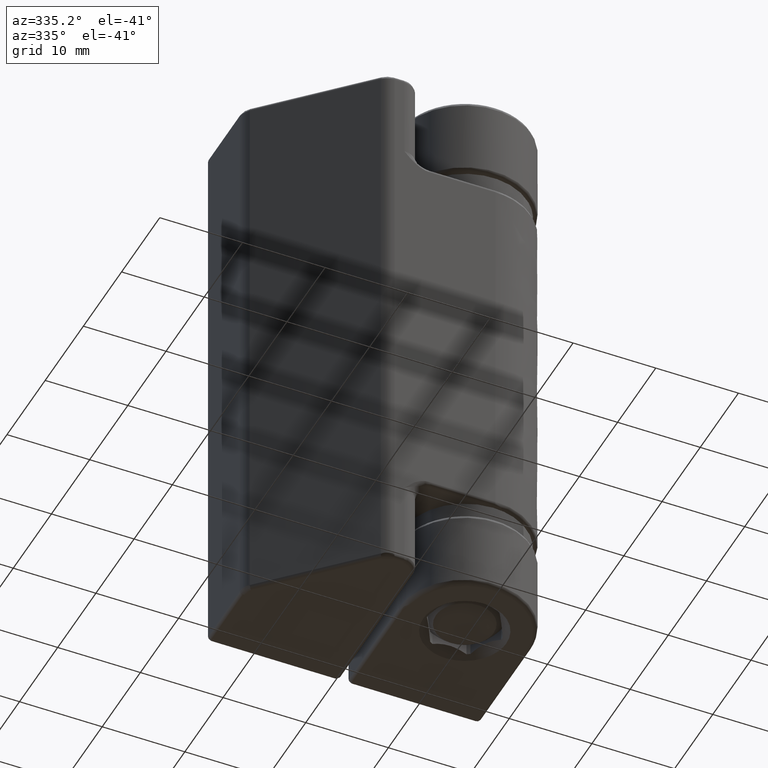
[diagram: clean part render]
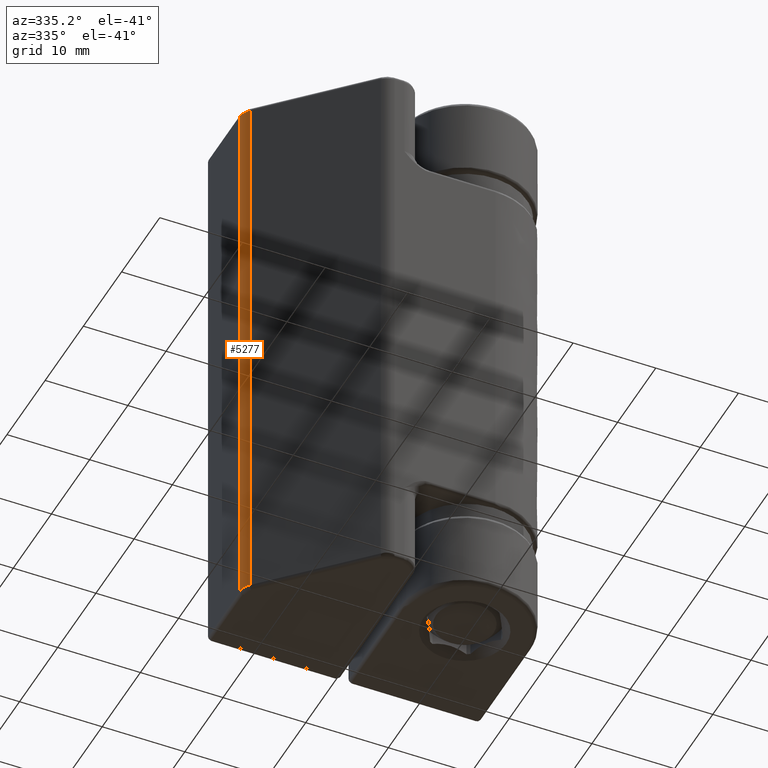
[diagram: same view with one face highlighted and labeled with its STEP entity id]
A machine part, auxiliary view. The second image highlights one B-rep face of the part: STEP entity #5277.
In plain terms, the highlighted face is a freeform B-spline surface patch.
Its self-contained STEP definition (entity closure, byte-faithful):
#5217=CARTESIAN_POINT('',(-24.999314649951110,4.880781021358529,71.225000000000009));
#5218=CARTESIAN_POINT('',(-24.999314649951110,4.880781021358529,-1.268125000000178));
#5219=CARTESIAN_POINT('',(-25.023002748085144,3.976169049943524,71.224999999999994));
#5220=CARTESIAN_POINT('',(-25.023002748085144,3.976169049943524,-1.268125000000179));
#5221=CARTESIAN_POINT('',(-24.359143899787586,3.361209397317768,71.225000000000009));
#5222=CARTESIAN_POINT('',(-24.359143899787586,3.361209397317768,-1.268125000000178));
#5230=(BOUNDED_SURFACE()B_SPLINE_SURFACE(1,2,((#5217,#5219,#5221),(#5218,#5220,#5222)),.UNSPECIFIED.,.F.,.F.,.U.)B_SPLINE_SURFACE_WITH_KNOTS((2,2),(3,3),(0.0,72.493125000000191),(0.0,0.973012848581560),.UNSPECIFIED.)GEOMETRIC_REPRESENTATION_ITEM()RATIONAL_B_SPLINE_SURFACE(((1.0,0.908836272974621,0.995079501389794),(1.0,0.908836272974621,0.995079501389794)))REPRESENTATION_ITEM('')SURFACE());
#5231=CARTESIAN_POINT('',(-24.414213562373099,3.414213562369675,69.500000000000000));
#5232=VERTEX_POINT('',#5231);
#5233=CARTESIAN_POINT('',(-24.414213562373099,3.414213562369675,0.499999999999834));
#5234=VERTEX_POINT('',#5233);
#5235=CARTESIAN_POINT('',(-24.414213562373099,3.414213562369675,69.500000000000000));
#5236=CARTESIAN_POINT('',(-24.414213562373099,3.414213562369675,0.499999999999834));
#5237=QUASI_UNIFORM_CURVE('',1,(#5235,#5236),.UNSPECIFIED.,.F.,.U.);
#5238=EDGE_CURVE('',#5232,#5234,#5237,.T.);
#5239=ORIENTED_EDGE('',*,*,#5238,.F.);
#5240=CARTESIAN_POINT('',(-25.0,4.828427124742780,69.500000000000000));
#5241=VERTEX_POINT('',#5240);
#5242=CARTESIAN_POINT('',(-24.414213562373089,3.414213562369683,69.500000000000000));
#5243=CARTESIAN_POINT('',(-25.0,3.999999999996589,69.500000000000000));
#5244=CARTESIAN_POINT('',(-25.0,4.828427124742780,69.500000000000000));
#5252=(BOUNDED_CURVE()B_SPLINE_CURVE(2,(#5242,#5243,#5244),.UNSPECIFIED.,.F.,.U.)CURVE()GEOMETRIC_REPRESENTATION_ITEM()QUASI_UNIFORM_CURVE()RATIONAL_B_SPLINE_CURVE((1.0,0.923879532511286,1.0))REPRESENTATION_ITEM(''));
#5253=EDGE_CURVE('',#5232,#5241,#5252,.T.);
#5254=ORIENTED_EDGE('',*,*,#5253,.T.);
#5255=CARTESIAN_POINT('',(-25.0,4.828427124742780,0.499999999999834));
#5256=VERTEX_POINT('',#5255);
#5257=CARTESIAN_POINT('',(-25.0,4.828427124742780,0.499999999999834));
#5258=CARTESIAN_POINT('',(-25.0,4.828427124742780,69.500000000000000));
#5259=QUASI_UNIFORM_CURVE('',1,(#5257,#5258),.UNSPECIFIED.,.F.,.U.);
#5260=EDGE_CURVE('',#5256,#5241,#5259,.T.);
#5261=ORIENTED_EDGE('',*,*,#5260,.F.);
#5262=CARTESIAN_POINT('',(-25.0,4.828427124742780,0.499999999999834));
#5263=CARTESIAN_POINT('',(-25.0,3.999999999996589,0.499999999999834));
#5264=CARTESIAN_POINT('',(-24.414213562373089,3.414213562369683,0.499999999999834));
#5272=(BOUNDED_CURVE()B_SPLINE_CURVE(2,(#5262,#5263,#5264),.UNSPECIFIED.,.F.,.U.)CURVE()GEOMETRIC_REPRESENTATION_ITEM()QUASI_UNIFORM_CURVE()RATIONAL_B_SPLINE_CURVE((1.0,0.923879532511286,1.0))REPRESENTATION_ITEM(''));
#5273=EDGE_CURVE('',#5256,#5234,#5272,.T.);
#5274=ORIENTED_EDGE('',*,*,#5273,.T.);
#5275=EDGE_LOOP('',(#5239,#5254,#5261,#5274));
#5276=FACE_OUTER_BOUND('',#5275,.T.);
#5277=ADVANCED_FACE('',(#5276),#5230,.T.);